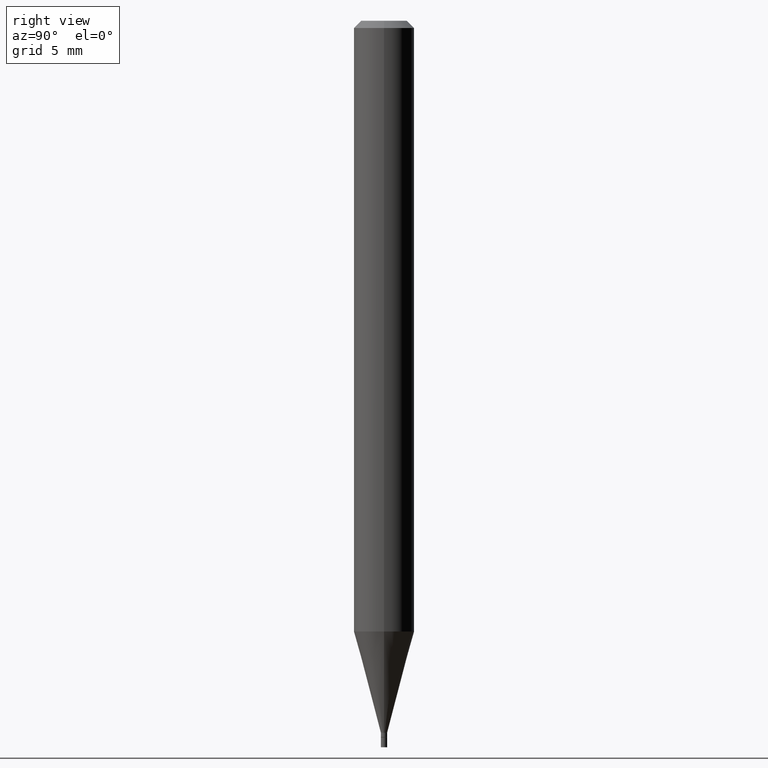
[diagram: clean part render]
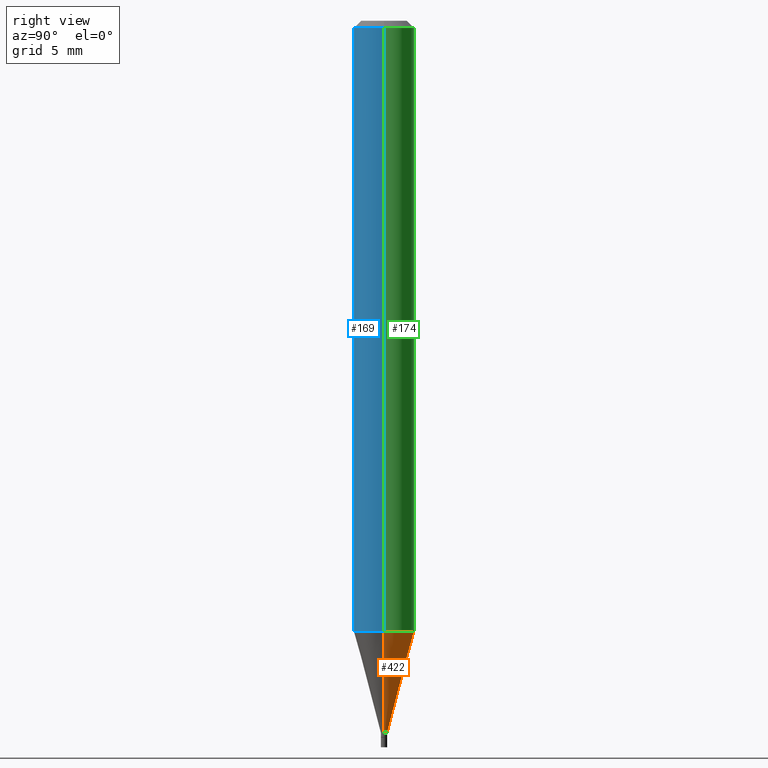
[diagram: same view with three faces highlighted in distinct colors, each labeled with its STEP entity id]
A machine part, right view with three faces highlighted in distinct colors.
Their STEP definitions:

[orange] entity #422 — the highlighted conical surface has half-angle 15 deg.
#9 = DIRECTION ( 'NONE',  ( 1.000000000000000000, -6.982962677686194924E-15, 0.000000000000000000 ) ) ;
#10 = VERTEX_POINT ( 'NONE', #429 ) ;
#12 = DIRECTION ( 'NONE',  ( -0.2588190451025211281, 5.211531920934547886E-15, 0.9659258262890679791 ) ) ;
#19 = DIRECTION ( 'NONE',  ( -2.445468806185136597E-29, 3.491481338843145583E-15, 1.000000000000000000 ) ) ;
#20 = CARTESIAN_POINT ( 'NONE',  ( 3.594839145092150820E-29, -5.132477568099424807E-15, -1.470000000000000195 ) ) ;
#69 = CARTESIAN_POINT ( 'NONE',  ( 0.006499999999999919904, -5.177866825504383900E-15, -1.470000000000000195 ) ) ;
#70 = VECTOR ( 'NONE', #192, 39.37007874015748854 ) ;
#74 = ORIENTED_EDGE ( 'NONE', *, *, #353, .F. ) ;
#87 = CIRCLE ( 'NONE', #188, 0.006499999999999919904 ) ;
#91 = ORIENTED_EDGE ( 'NONE', *, *, #132, .T. ) ;
#94 = CARTESIAN_POINT ( 'NONE',  ( 3.083748770443718248E-29, -4.402775966085916006E-15, -1.261005154776143167 ) ) ;
#113 = EDGE_CURVE ( 'NONE', #214, #420, #407, .T. ) ;
#124 = DIRECTION ( 'NONE',  ( 1.000000000000000000, -6.982962677686262766E-15, 0.000000000000000000 ) ) ;
#129 = VERTEX_POINT ( 'NONE', #346 ) ;
#132 = EDGE_CURVE ( 'NONE', #10, #214, #87, .T. ) ;
#183 = EDGE_CURVE ( 'NONE', #10, #129, #297, .T. ) ;
#188 = AXIS2_PLACEMENT_3D ( 'NONE', #241, #19, #9 ) ;
#192 = DIRECTION ( 'NONE',  ( 0.2588190451025211281, 1.565188264969622954E-15, 0.9659258262890679791 ) ) ;
#194 = CARTESIAN_POINT ( 'NONE',  ( -0.006499999999999919904, -4.522489523255436413E-15, -1.470000000000000195 ) ) ;
#211 = FACE_OUTER_BOUND ( 'NONE', #370, .T. ) ;
#212 = CARTESIAN_POINT ( 'NONE',  ( -0.006499999999999919904, -5.086292290275018648E-15, -1.470000000000000195 ) ) ;
#214 = VERTEX_POINT ( 'NONE', #194 ) ;
#236 = AXIS2_PLACEMENT_3D ( 'NONE', #94, #246, #124 ) ;
#241 = CARTESIAN_POINT ( 'NONE',  ( 3.594839145092150820E-29, -5.132477568099424807E-15, -1.470000000000000195 ) ) ;
#246 = DIRECTION ( 'NONE',  ( -2.445468806185136597E-29, 3.491481338843145583E-15, 1.000000000000000000 ) ) ;
#276 = AXIS2_PLACEMENT_3D ( 'NONE', #20, #413, #348 ) ;
#297 = LINE ( 'NONE', #69, #70 ) ;
#309 = VECTOR ( 'NONE', #12, 39.37007874015748854 ) ;
#346 = CARTESIAN_POINT ( 'NONE',  ( 0.06250000000000000000, -4.839211133441306886E-15, -1.261005154776143167 ) ) ;
#348 = DIRECTION ( 'NONE',  ( 1.000000000000000000, -6.982962677686194924E-15, 0.000000000000000000 ) ) ;
#351 = CARTESIAN_POINT ( 'NONE',  ( -0.06250000000000000000, -3.958686756235853390E-15, -1.261005154776143167 ) ) ;
#353 = EDGE_CURVE ( 'NONE', #129, #420, #419, .T. ) ;
#370 = EDGE_LOOP ( 'NONE', ( #91, #390, #74, #466 ) ) ;
#390 = ORIENTED_EDGE ( 'NONE', *, *, #113, .T. ) ;
#407 = LINE ( 'NONE', #212, #309 ) ;
#413 = DIRECTION ( 'NONE',  ( -2.445468806185136597E-29, 3.491481338843145583E-15, 1.000000000000000000 ) ) ;
#419 = CIRCLE ( 'NONE', #236, 0.06250000000000000000 ) ;
#420 = VERTEX_POINT ( 'NONE', #351 ) ;
#422 = ADVANCED_FACE ( 'NONE', ( #211 ), #424, .T. ) ;
#424 = CONICAL_SURFACE ( 'NONE', #276, 0.006499999999999919904, 0.2617993877991498519 ) ;
#429 = CARTESIAN_POINT ( 'NONE',  ( 0.006499999999999919904, -5.177866825504383900E-15, -1.470000000000000195 ) ) ;
#466 = ORIENTED_EDGE ( 'NONE', *, *, #183, .F. ) ;

[blue] entity #169 — the highlighted cylindrical surface (edge-blend (fillet) strip) has radius 1.5875 mm, axis along (-0, 0, 1).
#22 = VECTOR ( 'NONE', #96, 39.37007874015748143 ) ;
#36 = DIRECTION ( 'NONE',  ( -2.445468806185136597E-29, 3.491481338843145583E-15, 1.000000000000000000 ) ) ;
#37 = EDGE_CURVE ( 'NONE', #420, #129, #384, .T. ) ;
#50 = CARTESIAN_POINT ( 'NONE',  ( -0.06250000000000000000, -1.783484883234218729E-15, -0.01499999999999999944 ) ) ;
#53 = CARTESIAN_POINT ( 'NONE',  ( -0.06250000000000000000, 4.440892098500626162E-16, -3.074334431409316114E-30 ) ) ;
#71 = DIRECTION ( 'NONE',  ( 1.000000000000000000, -6.982962677686262766E-15, 0.000000000000000000 ) ) ;
#78 = CARTESIAN_POINT ( 'NONE',  ( 0.000000000000000000, 0.000000000000000000, 0.000000000000000000 ) ) ;
#83 = ORIENTED_EDGE ( 'NONE', *, *, #37, .T. ) ;
#96 = DIRECTION ( 'NONE',  ( -2.445468806185136877E-29, 3.491481338843145188E-15, 1.000000000000000000 ) ) ;
#111 = CARTESIAN_POINT ( 'NONE',  ( 3.083748770443718248E-29, -4.402775966085916006E-15, -1.261005154776143167 ) ) ;
#121 = AXIS2_PLACEMENT_3D ( 'NONE', #345, #240, #375 ) ;
#126 = CIRCLE ( 'NONE', #121, 0.06250000000000000000 ) ;
#129 = VERTEX_POINT ( 'NONE', #346 ) ;
#136 = LINE ( 'NONE', #53, #22 ) ;
#152 = FACE_OUTER_BOUND ( 'NONE', #237, .T. ) ;
#169 = ADVANCED_FACE ( 'NONE', ( #152 ), #268, .T. ) ;
#193 = ORIENTED_EDGE ( 'NONE', *, *, #436, .F. ) ;
#231 = ORIENTED_EDGE ( 'NONE', *, *, #287, .T. ) ;
#235 = DIRECTION ( 'NONE',  ( -2.445468806185136597E-29, 3.491481338843145583E-15, 1.000000000000000000 ) ) ;
#237 = EDGE_LOOP ( 'NONE', ( #193, #83, #231, #349 ) ) ;
#240 = DIRECTION ( 'NONE',  ( -2.445468806185136597E-29, 3.491481338843145583E-15, 1.000000000000000000 ) ) ;
#255 = DIRECTION ( 'NONE',  ( 1.000000000000000000, -6.982962677686266711E-15, 4.876176775795935793E-29 ) ) ;
#268 = CYLINDRICAL_SURFACE ( 'NONE', #409, 0.06250000000000000000 ) ;
#277 = CARTESIAN_POINT ( 'NONE',  ( 0.06250000000000000000, -4.888073874380388472E-16, -0.01499999999999999944 ) ) ;
#287 = EDGE_CURVE ( 'NONE', #129, #331, #401, .T. ) ;
#299 = CARTESIAN_POINT ( 'NONE',  ( 0.06250000000000000000, -4.364351673553916694E-16, 3.047610484872459871E-30 ) ) ;
#300 = VERTEX_POINT ( 'NONE', #50 ) ;
#301 = DIRECTION ( 'NONE',  ( -2.445468806185136877E-29, 3.491481338843145188E-15, 1.000000000000000000 ) ) ;
#331 = VERTEX_POINT ( 'NONE', #277 ) ;
#345 = CARTESIAN_POINT ( 'NONE',  ( 3.668203209277705088E-31, -5.237222008264718399E-17, -0.01499999999999999944 ) ) ;
#346 = CARTESIAN_POINT ( 'NONE',  ( 0.06250000000000000000, -4.839211133441306886E-15, -1.261005154776143167 ) ) ;
#349 = ORIENTED_EDGE ( 'NONE', *, *, #381, .F. ) ;
#351 = CARTESIAN_POINT ( 'NONE',  ( -0.06250000000000000000, -3.958686756235853390E-15, -1.261005154776143167 ) ) ;
#375 = DIRECTION ( 'NONE',  ( 1.000000000000000000, -6.982962677686266711E-15, 0.000000000000000000 ) ) ;
#381 = EDGE_CURVE ( 'NONE', #300, #331, #126, .T. ) ;
#384 = CIRCLE ( 'NONE', #445, 0.06250000000000000000 ) ;
#396 = VECTOR ( 'NONE', #301, 39.37007874015748143 ) ;
#401 = LINE ( 'NONE', #299, #396 ) ;
#409 = AXIS2_PLACEMENT_3D ( 'NONE', #78, #235, #255 ) ;
#420 = VERTEX_POINT ( 'NONE', #351 ) ;
#436 = EDGE_CURVE ( 'NONE', #420, #300, #136, .T. ) ;
#445 = AXIS2_PLACEMENT_3D ( 'NONE', #111, #36, #71 ) ;

[green] entity #174 — the highlighted cylindrical surface (edge-blend (fillet) strip) has radius 1.5875 mm, axis along (-0, 0, 1).
#2 = DIRECTION ( 'NONE',  ( 1.000000000000000000, -6.982962677686266711E-15, 0.000000000000000000 ) ) ;
#17 = AXIS2_PLACEMENT_3D ( 'NONE', #356, #393, #257 ) ;
#22 = VECTOR ( 'NONE', #96, 39.37007874015748143 ) ;
#43 = FACE_OUTER_BOUND ( 'NONE', #303, .T. ) ;
#46 = EDGE_CURVE ( 'NONE', #331, #300, #304, .T. ) ;
#50 = CARTESIAN_POINT ( 'NONE',  ( -0.06250000000000000000, -1.783484883234218729E-15, -0.01499999999999999944 ) ) ;
#53 = CARTESIAN_POINT ( 'NONE',  ( -0.06250000000000000000, 4.440892098500626162E-16, -3.074334431409316114E-30 ) ) ;
#77 = ORIENTED_EDGE ( 'NONE', *, *, #46, .F. ) ;
#94 = CARTESIAN_POINT ( 'NONE',  ( 3.083748770443718248E-29, -4.402775966085916006E-15, -1.261005154776143167 ) ) ;
#96 = DIRECTION ( 'NONE',  ( -2.445468806185136877E-29, 3.491481338843145188E-15, 1.000000000000000000 ) ) ;
#124 = DIRECTION ( 'NONE',  ( 1.000000000000000000, -6.982962677686262766E-15, 0.000000000000000000 ) ) ;
#129 = VERTEX_POINT ( 'NONE', #346 ) ;
#136 = LINE ( 'NONE', #53, #22 ) ;
#174 = ADVANCED_FACE ( 'NONE', ( #43 ), #232, .T. ) ;
#209 = ORIENTED_EDGE ( 'NONE', *, *, #436, .T. ) ;
#232 = CYLINDRICAL_SURFACE ( 'NONE', #17, 0.06250000000000000000 ) ;
#236 = AXIS2_PLACEMENT_3D ( 'NONE', #94, #246, #124 ) ;
#246 = DIRECTION ( 'NONE',  ( -2.445468806185136597E-29, 3.491481338843145583E-15, 1.000000000000000000 ) ) ;
#257 = DIRECTION ( 'NONE',  ( 1.000000000000000000, -6.982962677686266711E-15, 4.876176775795935793E-29 ) ) ;
#277 = CARTESIAN_POINT ( 'NONE',  ( 0.06250000000000000000, -4.888073874380388472E-16, -0.01499999999999999944 ) ) ;
#287 = EDGE_CURVE ( 'NONE', #129, #331, #401, .T. ) ;
#294 = CARTESIAN_POINT ( 'NONE',  ( 3.668203209277705088E-31, -5.237222008264718399E-17, -0.01499999999999999944 ) ) ;
#299 = CARTESIAN_POINT ( 'NONE',  ( 0.06250000000000000000, -4.364351673553916694E-16, 3.047610484872459871E-30 ) ) ;
#300 = VERTEX_POINT ( 'NONE', #50 ) ;
#301 = DIRECTION ( 'NONE',  ( -2.445468806185136877E-29, 3.491481338843145188E-15, 1.000000000000000000 ) ) ;
#303 = EDGE_LOOP ( 'NONE', ( #432, #209, #77, #339 ) ) ;
#304 = CIRCLE ( 'NONE', #360, 0.06250000000000000000 ) ;
#331 = VERTEX_POINT ( 'NONE', #277 ) ;
#339 = ORIENTED_EDGE ( 'NONE', *, *, #287, .F. ) ;
#346 = CARTESIAN_POINT ( 'NONE',  ( 0.06250000000000000000, -4.839211133441306886E-15, -1.261005154776143167 ) ) ;
#351 = CARTESIAN_POINT ( 'NONE',  ( -0.06250000000000000000, -3.958686756235853390E-15, -1.261005154776143167 ) ) ;
#353 = EDGE_CURVE ( 'NONE', #129, #420, #419, .T. ) ;
#356 = CARTESIAN_POINT ( 'NONE',  ( 0.000000000000000000, 0.000000000000000000, 0.000000000000000000 ) ) ;
#360 = AXIS2_PLACEMENT_3D ( 'NONE', #294, #364, #2 ) ;
#364 = DIRECTION ( 'NONE',  ( -2.445468806185136597E-29, 3.491481338843145583E-15, 1.000000000000000000 ) ) ;
#393 = DIRECTION ( 'NONE',  ( -2.445468806185136597E-29, 3.491481338843145583E-15, 1.000000000000000000 ) ) ;
#396 = VECTOR ( 'NONE', #301, 39.37007874015748143 ) ;
#401 = LINE ( 'NONE', #299, #396 ) ;
#419 = CIRCLE ( 'NONE', #236, 0.06250000000000000000 ) ;
#420 = VERTEX_POINT ( 'NONE', #351 ) ;
#432 = ORIENTED_EDGE ( 'NONE', *, *, #353, .T. ) ;
#436 = EDGE_CURVE ( 'NONE', #420, #300, #136, .T. ) ;